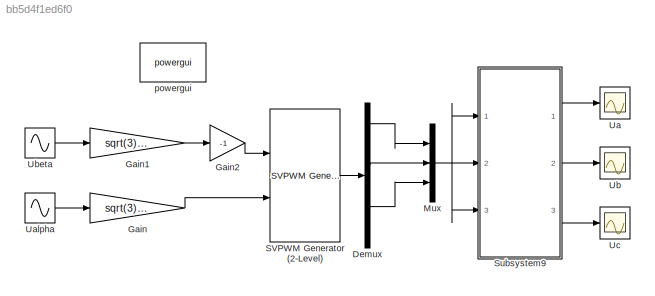
MODEL slx_bb5d4f1ed6f0
KIND model
CONFIG InitFcn = Vdc=700;
BLOCK [Demux] Demux
  DisplayOption = bar
  Outputs = 6
  Ports = [1, 6]
BLOCK [Gain] Gain
  Gain = sqrt(3)/700
  OutDataTypeStr = Inherit: Inherit via internal rule
  ParamDataTypeStr = Inherit: Inherit via internal rule
  SaturateOnIntegerOverflow = off
BLOCK [Gain] Gain1
  Gain = sqrt(3)/700
  OutDataTypeStr = Inherit: Inherit via internal rule
  ParamDataTypeStr = Inherit: Inherit via internal rule
  SaturateOnIntegerOverflow = off
BLOCK [Gain] Gain2
  Gain = -1
  OutDataTypeStr = Inherit: Inherit via internal rule
  ParamDataTypeStr = Inherit: Inherit via internal rule
  SaturateOnIntegerOverflow = off
BLOCK [Mux] Mux
  DisplayOption = bar
  Inputs = 3
  Ports = [3, 1]
BLOCK [Reference] SVPWM Generator (2-Level)  REF=powerlib_meascontrol/Pulse & Signal
Generators/SVPWM Generator
(2-Level)
  Fc = 5000
  InputType = alpha-beta components
  ParUref = [0.8 -30 50]
  Ports = [2, 1]
  SourceBlock = powerlib_meascontrol/Pulse & Signal\nGenerators/SVPWM Generator\n(2-Level)
  SourceType = SVPWM Generator (2-Level)
  SwitchingPattern = Pattern #1
  Ts = 0
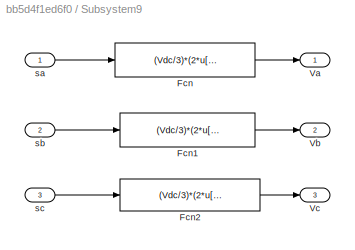
BLOCK [SubSystem] Subsystem9
  Ports = [3, 3]
  RequestExecContextInheritance = off
BLOCK [Fcn] Subsystem9/Fcn
  Expr = (Vdc/3)*(2*u[1]-u[2]-u[3])
BLOCK [Fcn] Subsystem9/Fcn1
  Expr = (Vdc/3)*(2*u[2]-u[1]-u[3])
BLOCK [Fcn] Subsystem9/Fcn2
  Expr = (Vdc/3)*(2*u[3]-u[2]-u[1])
BLOCK [Outport] Subsystem9/Va
  IconDisplay = Port number
BLOCK [Outport] Subsystem9/Vb
  IconDisplay = Port number
  Port = 2
BLOCK [Outport] Subsystem9/Vc
  IconDisplay = Port number
  Port = 3
BLOCK [Inport] Subsystem9/sa
  IconDisplay = Port number
BLOCK [Inport] Subsystem9/sb
  IconDisplay = Port number
  Port = 2
BLOCK [Inport] Subsystem9/sc
  IconDisplay = Port number
  Port = 3
BLOCK [Scope] Ua  
  DataFormat = StructureWithTime
  Floating = off
  LimitDataPoints = off
  NumInputPorts = 1
  Ports = [1]
  SampleInput = on
  SampleTime = 0
  SaveName = Ua
  SaveToWorkspace = on
  ShowLegends = off
  YMax = 500
  YMin = -500
BLOCK [Sin] Ualpha
  Amplitude = 200
  Frequency = 100*pi
  Phase = pi/2
  Ports = [0, 1]
  SampleTime = 0
BLOCK [Scope] Ub
  DataFormat = StructureWithTime
  Floating = off
  LimitDataPoints = off
  NumInputPorts = 1
  Ports = [1]
  SampleInput = on
  SampleTime = 0
  SaveName = Ua1
  ShowLegends = off
  YMax = 500
  YMin = -500
BLOCK [Sin] Ubeta
  Amplitude = 200
  Frequency = 100*pi
  Ports = [0, 1]
  SampleTime = 0
BLOCK [Scope] Uc
  DataFormat = StructureWithTime
  Floating = off
  LimitDataPoints = off
  NumInputPorts = 1
  Ports = [1]
  SampleInput = on
  SampleTime = 0
  SaveName = Ua2
  ShowLegends = off
  YMax = 500
  YMin = -500
BLOCK [Reference] powergui  REF=powerlib/powergui
  DisableRonSwitches = off
  DisableSnubberDevices = off
  DisableVfSwitches = off
  DisplayEquations = off
  DisplayStyle = 1
  EnableUseOfTLC = off
  ErrMax = 1e-4
  Frange = [0:2:500]
  FreqAxis = off
  FunctionMessages = off
  HookPort = off
  Interpol = off
  Iterations = 50
  MaxFrequency = 9000
  Pbase = 100e6
  Ports = []
  Priority = 1
  ResistiveCurrentMeasurement = off
  RestoreLinks = warning
  RmsSteady = 1
  SPID = off
  SampleTime = 50e-6
  ShowGrid = off
  SolverType = Tustin/Backward Euler (TBE)
  SourceBlock = powerlib/powergui
  SourceType = PSB option menu block
  StartTime = 0.05
  SwTol = 0
  Ts = 100
  UnitsV = kV
  UnitsW = MW
  UserDataPersistent = on
  Xlog = on
  Ylog = off
  ZoomFFT = off
  cycles = 1
  display = off
  echomessages = off
  frequency = 60
  frequencyindice = 60
  frequencyindicesteady = 1
  fundamental = 50
  methode = off
  save = off
  structure = Ua
  variable = ZData
  x0status = blocks
LINE Demux:1 -> Mux:1
LINE Demux:3 -> Mux:2
LINE Demux:5 -> Mux:3
LINE Gain1:1 -> Gain2:1
LINE Gain2:1 -> SVPWM Generator (2-Level):1
LINE Gain:1 -> SVPWM Generator (2-Level):2
NET Mux:1 -> Subsystem9:1, Subsystem9:2, Subsystem9:3
LINE SVPWM Generator (2-Level):1 -> Demux:1
LINE Subsystem9/Fcn1:1 -> Subsystem9/Vb:1
LINE Subsystem9/Fcn2:1 -> Subsystem9/Vc:1
LINE Subsystem9/Fcn:1 -> Subsystem9/Va:1
LINE Subsystem9/sa:1 -> Subsystem9/Fcn:1
LINE Subsystem9/sb:1 -> Subsystem9/Fcn1:1
LINE Subsystem9/sc:1 -> Subsystem9/Fcn2:1
LINE Subsystem9:1 -> Ua  :1
LINE Subsystem9:2 -> Ub:1
LINE Subsystem9:3 -> Uc:1
LINE Ualpha:1 -> Gain:1
LINE Ubeta:1 -> Gain1:1
note: NET lines group one-source signal fan-out (src -> all destinations, sorted); 1:1 wires keep LINE
